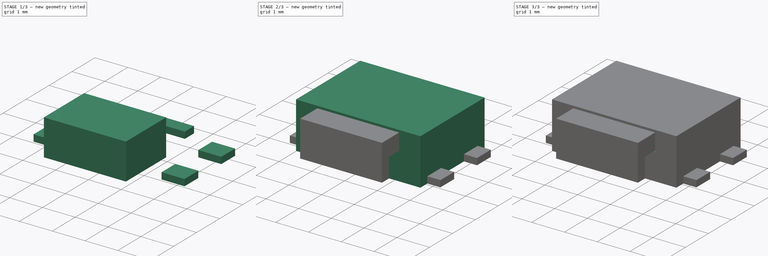
[diagram: build sequence overview — one tinted view per stage of 3, left to right]
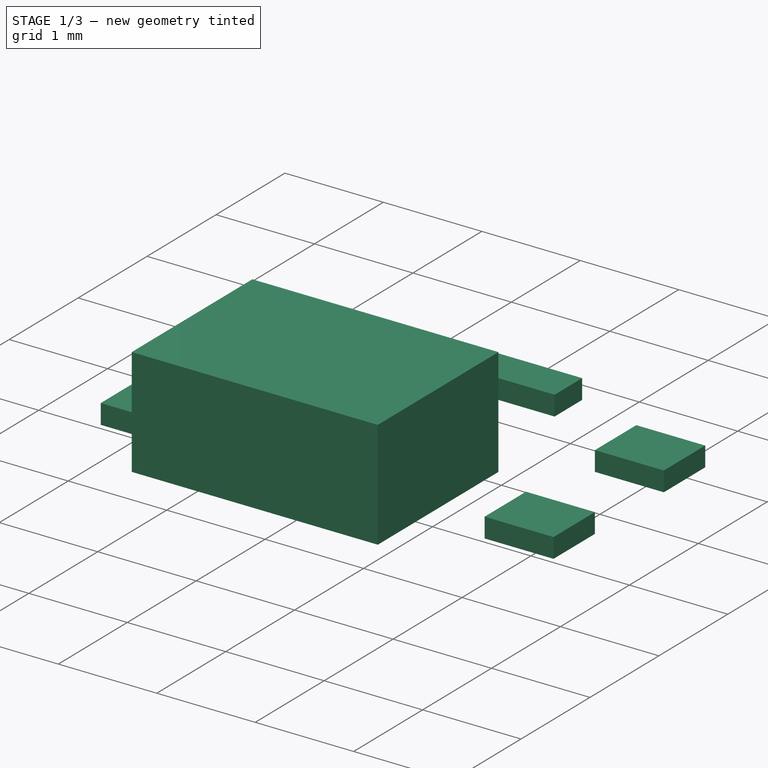
[diagram: stage 1 of 3 — iso view after this stage's code; geometry added in this stage tinted green]
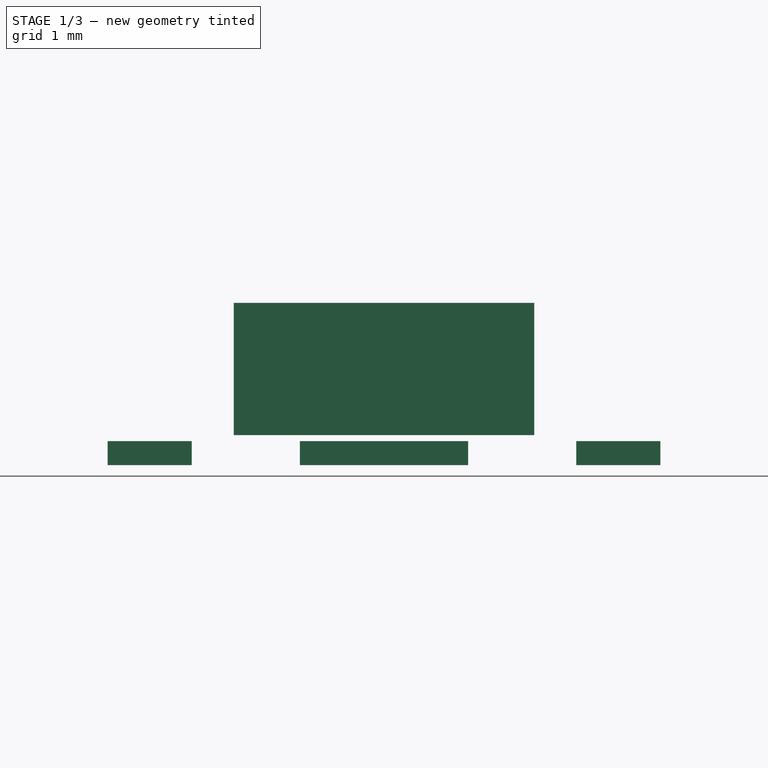
[diagram: stage 1 of 3 — front view after this stage's code; geometry added in this stage tinted green]
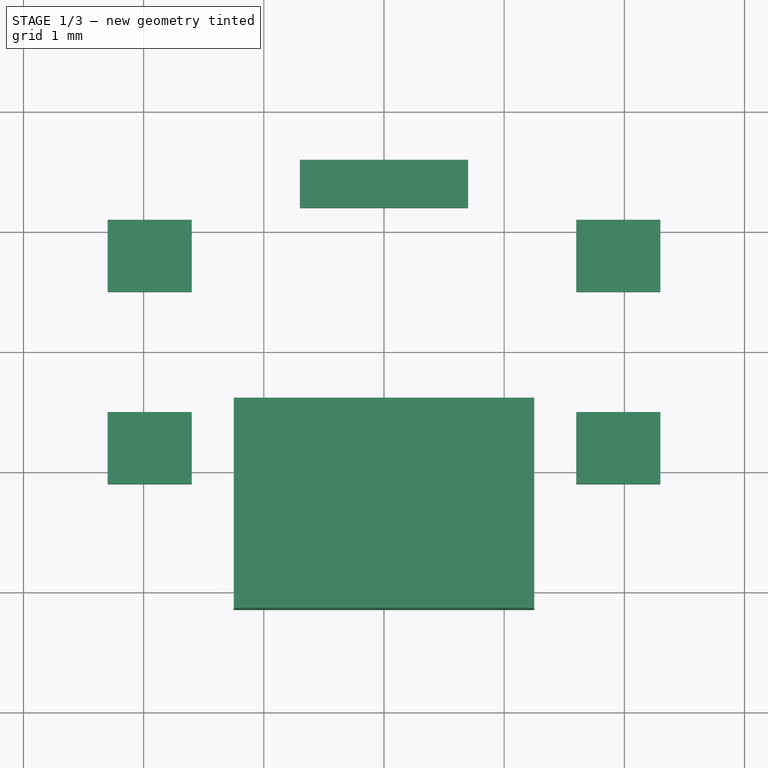
[diagram: stage 1 of 3 — top view after this stage's code; geometry added in this stage tinted green]
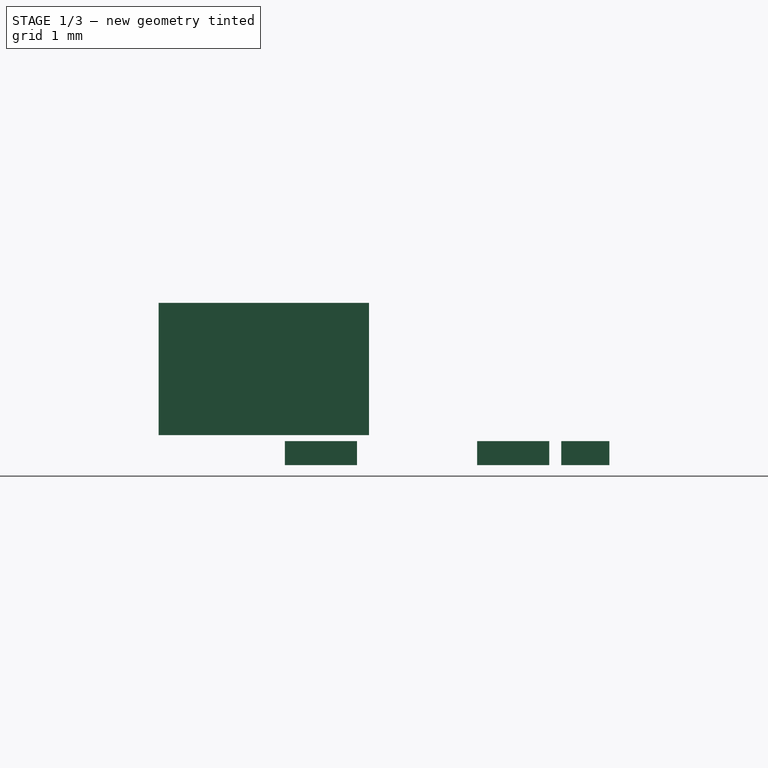
[diagram: stage 1 of 3 — right view after this stage's code; geometry added in this stage tinted green]
FCSTD DOCUMENT  (FreeCAD 0.16R6452 (Git))
Label: C-K_Components_Switch_Tactile_KMS
License: All rights reserved
LicenseURL: http://en.wikipedia.org/wiki/All_rights_reserved
objects: Sketcher::SketchObject×7, PartDesign::Pad×3, PartDesign::Pocket×2, Part::MultiFuse×1
note: 18 computed .brp shape members not serialized (recipe doc carries the construction recipe); baked Part::Feature solids carry a one-line shape summary decoded from their .brp

FEATURE [Sketcher::SketchObject] Sketch004  label="Button"
  Placement = pos=(0,-1.4,0) rot=(1,0,0;1.5708rad)
  sketch-geometry (5):
    g0: LineSegment StartX=-1.25 StartY=1.35 StartZ=0 EndX=1.25 EndY=1.35 EndZ=0
    g1: LineSegment StartX=1.25 StartY=1.35 StartZ=0 EndX=1.25 EndY=0.25 EndZ=0
    g2: LineSegment StartX=1.25 StartY=0.25 StartZ=0 EndX=-1.25 EndY=0.25 EndZ=0
    g3: LineSegment StartX=-1.25 StartY=0.25 StartZ=0 EndX=-1.25 EndY=1.35 EndZ=0
    g4: LineSegment [constr] StartX=0 StartY=0.25 StartZ=0 EndX=0 EndY=0 EndZ=0
  constraints (14):
    c: Coincident(g0,g1)
    c: Coincident(g1,g2)
    c: Coincident(g2,g3)
    c: Coincident(g3,g0)
    c: Horizontal(g0)
    c: Horizontal(g2)
    c: Vertical(g1)
    c: Vertical(g3)
    c: Vertical(g4)
    c: Coincident(g4,g-1)
    c: Symmetric(g2,g2,g4)
    c: DistanceY(g1) = -1.1
    c: DistanceY(g-1,g0) = 1.35
    c: DistanceX(g0) = 2.5
FEATURE [PartDesign::Pad] Pad001  label="Button_Pad"
  Length = 0.75
  Length2 = 1
  Placement = pos=(0,-1.4,0) rot=(1,0,0;1.5708rad)
  Sketch = -> Sketch004
  Type = 4
FEATURE [Sketcher::SketchObject] Sketch006  label="Pins"
  sketch-geometry (24):
    g0: LineSegment StartX=-2.3 StartY=-0.5 StartZ=0 EndX=-1.6 EndY=-0.5 EndZ=0
    g1: LineSegment StartX=-1.6 StartY=-0.5 StartZ=0 EndX=-1.6 EndY=-1.1 EndZ=0
    g2: LineSegment StartX=-1.6 StartY=-1.1 StartZ=0 EndX=-2.3 EndY=-1.1 EndZ=0
    g3: LineSegment StartX=-2.3 StartY=-1.1 StartZ=0 EndX=-2.3 EndY=-0.5 EndZ=0
    g4: LineSegment StartX=1.6 StartY=-0.5 StartZ=0 EndX=2.3 EndY=-0.5 EndZ=0
    g5: LineSegment StartX=2.3 StartY=-0.5 StartZ=0 EndX=2.3 EndY=-1.1 EndZ=0
    g6: LineSegment StartX=2.3 StartY=-1.1 StartZ=0 EndX=1.6 EndY=-1.1 EndZ=0
    g7: LineSegment StartX=1.6 StartY=-1.1 StartZ=0 EndX=1.6 EndY=-0.5 EndZ=0
    g8: LineSegment StartX=1.6 StartY=1.1 StartZ=0 EndX=2.3 EndY=1.1 EndZ=0
    g9: LineSegment StartX=2.3 StartY=1.1 StartZ=0 EndX=2.3 EndY=0.5 EndZ=0
    g10: LineSegment StartX=2.3 StartY=0.5 StartZ=0 EndX=1.6 EndY=0.5 EndZ=0
    g11: LineSegment StartX=1.6 StartY=0.5 StartZ=0 EndX=1.6 EndY=1.1 EndZ=0
    g12: LineSegment StartX=-2.3 StartY=1.1 StartZ=0 EndX=-1.6 EndY=1.1 EndZ=0
    g13: LineSegment StartX=-1.6 StartY=1.1 StartZ=0 EndX=-1.6 EndY=0.5 EndZ=0
    g14: LineSegment StartX=-1.6 StartY=0.5 StartZ=0 EndX=-2.3 EndY=0.5 EndZ=0
    g15: LineSegment StartX=-2.3 StartY=0.5 StartZ=0 EndX=-2.3 EndY=1.1 EndZ=0
    g16: LineSegment StartX=-0.7 StartY=1.6 StartZ=0 EndX=0.7 EndY=1.6 EndZ=0
    g17: LineSegment StartX=0.7 StartY=1.6 StartZ=0 EndX=0.7 EndY=1.2 EndZ=0
    g18: LineSegment StartX=0.7 StartY=1.2 StartZ=0 EndX=-0.7 EndY=1.2 EndZ=0
    g19: LineSegment StartX=-0.7 StartY=1.2 StartZ=0 EndX=-0.7 EndY=1.6 EndZ=0
    g20: LineSegment [constr] StartX=-1.95 StartY=0.8 StartZ=0 EndX=1.95 EndY=0.8 EndZ=0
    g21: LineSegment [constr] StartX=-1.95 StartY=-0.8 StartZ=0 EndX=1.95 EndY=-0.8 EndZ=0
    g22: LineSegment [constr] StartX=0 StartY=-0.8 StartZ=0 EndX=0 EndY=0.8 EndZ=0
    g23: LineSegment [constr] StartX=0 StartY=0.8 StartZ=0 EndX=0 EndY=1.4 EndZ=0
  constraints (72):
    c: Coincident(g0,g1)
    c: Coincident(g1,g2)
    c: Coincident(g2,g3)
    c: Coincident(g3,g0)
    c: Horizontal(g0)
    c: Horizontal(g2)
    c: Vertical(g1)
    c: Vertical(g3)
    c: Coincident(g4,g5)
    c: Coincident(g5,g6)
    c: Coincident(g6,g7)
    c: Coincident(g7,g4)
    c: Horizontal(g4)
    c: Horizontal(g6)
    c: Vertical(g5)
    c: Vertical(g7)
    c: Coincident(g8,g9)
    c: Coincident(g9,g10)
    c: Coincident(g10,g11)
    c: Coincident(g11,g8)
    c: Horizontal(g8)
    c: Horizontal(g10)
    c: Vertical(g9)
    c: Vertical(g11)
    c: Coincident(g12,g13)
    c: Coincident(g13,g14)
    c: Coincident(g14,g15)
    c: Coincident(g15,g12)
    c: Horizontal(g12)
    c: Horizontal(g14)
    c: Vertical(g13)
    c: Vertical(g15)
    c: Coincident(g16,g17)
    c: Coincident(g17,g18)
    c: Coincident(g18,g19)
    c: Coincident(g19,g16)
    c: Horizontal(g16)
    c: Horizontal(g18)
    c: Vertical(g17)
    c: Vertical(g19)
    c: Equal(g5,g1)
    c: Equal(g1,g13)
    c: Equal(g13,g9)
    c: DistanceY(g5) = -0.6
    c: Horizontal(g20)
    c: Horizontal(g21)
    c: Symmetric(g2,g0,g21)
    c: Symmetric(g6,g4,g21)
    c: Symmetric(g10,g8,g20)
    c: Symmetric(g14,g12,g20)
    c: Equal(g14,g2)
    c: Equal(g2,g6)
    c: Equal(g6,g10)
    c: Vertical(g22)
    c: Symmetric(g20,g20,g22)
    c: Symmetric(g21,g21,g22)
    c: Symmetric(g22,g22,g-1)
    c: DistanceX(g8,g12) = -4.6
    c: Equal(g20,g21)
    c: DistanceX(g12,g8) = 3.2
    c: DistanceY(g8,g5) = -2.2
    c: Vertical(g23)
    c: Symmetric(g18,g16,g23)
    c: Coincident(g23,g22)
    c: DistanceX(g16) = 1.4
    c: DistanceY(g19) = 0.4
    c: DistanceY(g4,g9) = 1
    c: DistanceY(g2,g18) = 2.3
    c: DistanceX(g21) = -1.95
    c: DistanceY(g21) = -0.8
    c: DistanceX(g6) = -0.7
    c: DistanceY(g-1,g23) = 1.4
FEATURE [PartDesign::Pad] Pad002  label="Pins_Pad"
  Length = 0.2
  Length2 = 100
  Sketch = -> Sketch006
  Type = 0
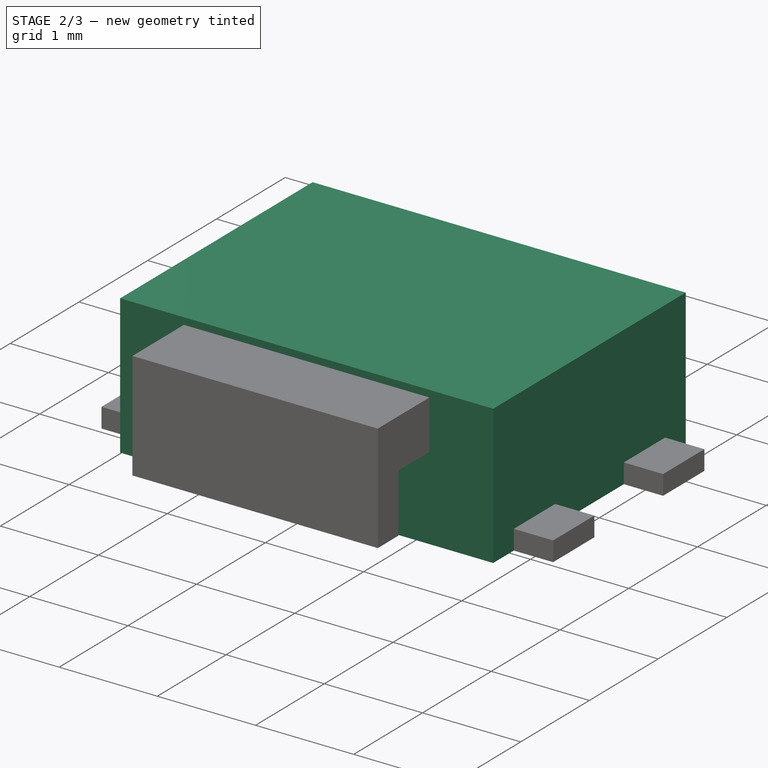
[diagram: stage 2 of 3 — iso view after this stage's code; geometry added in this stage tinted green]
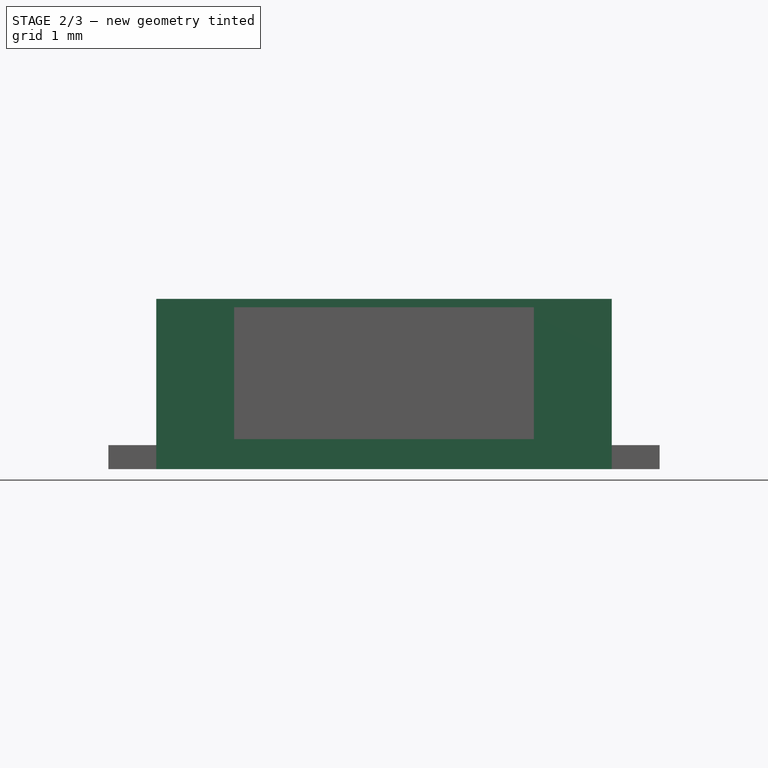
[diagram: stage 2 of 3 — front view after this stage's code; geometry added in this stage tinted green]
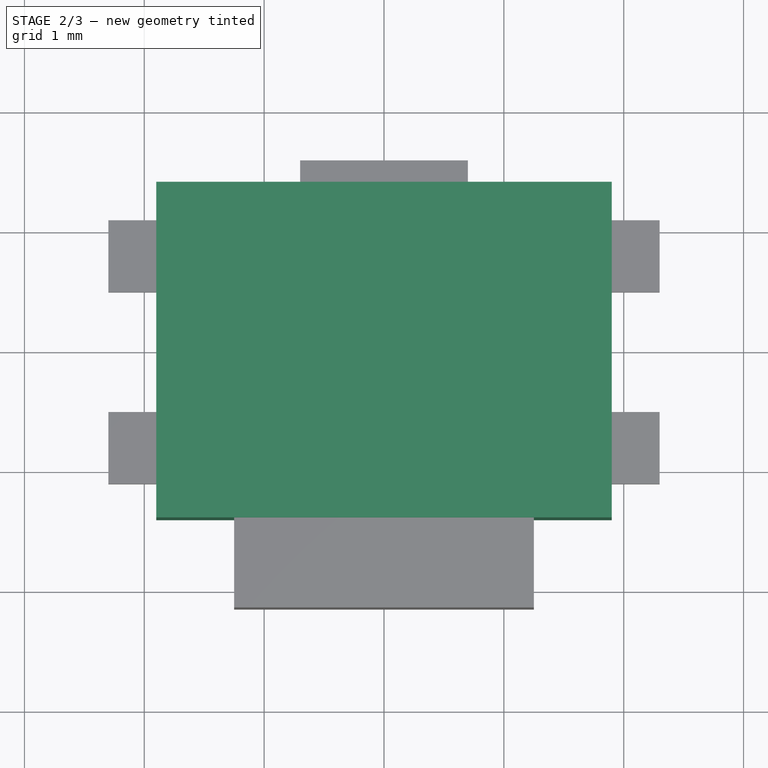
[diagram: stage 2 of 3 — top view after this stage's code; geometry added in this stage tinted green]
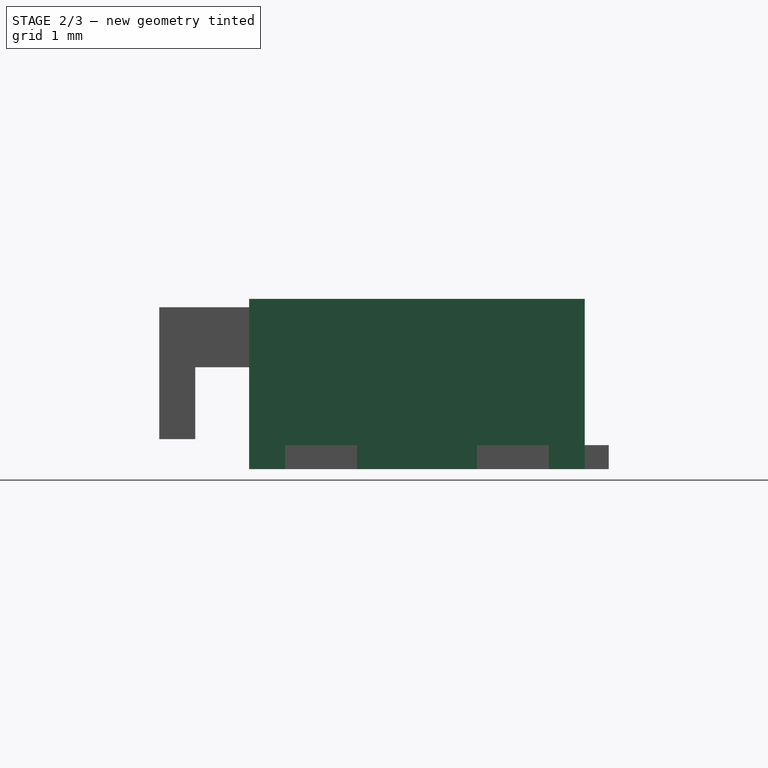
[diagram: stage 2 of 3 — right view after this stage's code; geometry added in this stage tinted green]
FEATURE [Sketcher::SketchObject] Sketch  label="LandPattern_Helper"
  sketch-geometry (24):
    g0: LineSegment StartX=-2.5 StartY=-0.3 StartZ=0 EndX=-1.6 EndY=-0.3 EndZ=0
    g1: LineSegment StartX=-1.6 StartY=-0.3 StartZ=0 EndX=-1.6 EndY=-1.3 EndZ=0
    g2: LineSegment StartX=-1.6 StartY=-1.3 StartZ=0 EndX=-2.5 EndY=-1.3 EndZ=0
    g3: LineSegment StartX=-2.5 StartY=-1.3 StartZ=0 EndX=-2.5 EndY=-0.3 EndZ=0
    g4: LineSegment StartX=1.6 StartY=-0.3 StartZ=0 EndX=2.5 EndY=-0.3 EndZ=0
    g5: LineSegment StartX=2.5 StartY=-0.3 StartZ=0 EndX=2.5 EndY=-1.3 EndZ=0
    g6: LineSegment StartX=2.5 StartY=-1.3 StartZ=0 EndX=1.6 EndY=-1.3 EndZ=0
    g7: LineSegment StartX=1.6 StartY=-1.3 StartZ=0 EndX=1.6 EndY=-0.3 EndZ=0
    g8: LineSegment StartX=1.6 StartY=1.3 StartZ=0 EndX=2.5 EndY=1.3 EndZ=0
    g9: LineSegment StartX=2.5 StartY=1.3 StartZ=0 EndX=2.5 EndY=0.3 EndZ=0
    g10: LineSegment StartX=2.5 StartY=0.3 StartZ=0 EndX=1.6 EndY=0.3 EndZ=0
    g11: LineSegment StartX=1.6 StartY=0.3 StartZ=0 EndX=1.6 EndY=1.3 EndZ=0
    g12: LineSegment StartX=-2.5 StartY=1.3 StartZ=0 EndX=-1.6 EndY=1.3 EndZ=0
    g13: LineSegment StartX=-1.6 StartY=1.3 StartZ=0 EndX=-1.6 EndY=0.3 EndZ=0
    g14: LineSegment StartX=-1.6 StartY=0.3 StartZ=0 EndX=-2.5 EndY=0.3 EndZ=0
    g15: LineSegment StartX=-2.5 StartY=0.3 StartZ=0 EndX=-2.5 EndY=1.3 EndZ=0
    g16: LineSegment StartX=-0.85 StartY=1.79 StartZ=0 EndX=0.85 EndY=1.79 EndZ=0
    g17: LineSegment StartX=0.85 StartY=1.79 StartZ=0 EndX=0.85 EndY=1.24 EndZ=0
    g18: LineSegment StartX=0.85 StartY=1.24 StartZ=0 EndX=-0.85 EndY=1.24 EndZ=0
    g19: LineSegment StartX=-0.85 StartY=1.24 StartZ=0 EndX=-0.85 EndY=1.79 EndZ=0
    g20: LineSegment [constr] StartX=-2.05 StartY=0.8 StartZ=0 EndX=2.05 EndY=0.8 EndZ=0
    g21: LineSegment [constr] StartX=-2.05 StartY=-0.8 StartZ=0 EndX=2.05 EndY=-0.8 EndZ=0
    g22: LineSegment [constr] StartX=0 StartY=-0.8 StartZ=0 EndX=0 EndY=0.8 EndZ=0
    g23: LineSegment [constr] StartX=0 StartY=0.8 StartZ=0 EndX=0 EndY=1.515 EndZ=0
  constraints (72):
    c: Coincident(g0,g1)
    c: Coincident(g1,g2)
    c: Coincident(g2,g3)
    c: Coincident(g3,g0)
    c: Horizontal(g0)
    c: Horizontal(g2)
    c: Vertical(g1)
    c: Vertical(g3)
    c: Coincident(g4,g5)
    c: Coincident(g5,g6)
    c: Coincident(g6,g7)
    c: Coincident(g7,g4)
    c: Horizontal(g4)
    c: Horizontal(g6)
    c: Vertical(g5)
    c: Vertical(g7)
    c: Coincident(g8,g9)
    c: Coincident(g9,g10)
    c: Coincident(g10,g11)
    c: Coincident(g11,g8)
    c: Horizontal(g8)
    c: Horizontal(g10)
    c: Vertical(g9)
    c: Vertical(g11)
    c: Coincident(g12,g13)
    c: Coincident(g13,g14)
    c: Coincident(g14,g15)
    c: Coincident(g15,g12)
    c: Horizontal(g12)
    c: Horizontal(g14)
    c: Vertical(g13)
    c: Vertical(g15)
    c: Coincident(g16,g17)
    c: Coincident(g17,g18)
    c: Coincident(g18,g19)
    c: Coincident(g19,g16)
    c: Horizontal(g16)
    c: Horizontal(g18)
    c: Vertical(g17)
    c: Vertical(g19)
    c: Equal(g5,g1)
    c: Equal(g1,g13)
    c: Equal(g13,g9)
    c: DistanceY(g5) = -1
    c: Horizontal(g20)
    c: Horizontal(g21)
    c: Symmetric(g2,g0,g21)
    c: Symmetric(g6,g4,g21)
    c: Symmetric(g10,g8,g20)
    c: Symmetric(g14,g12,g20)
    c: Equal(g14,g2)
    c: Equal(g2,g6)
    c: Equal(g6,g10)
    c: Vertical(g22)
    c: Symmetric(g20,g20,g22)
    c: Symmetric(g21,g21,g22)
    c: Symmetric(g22,g22,g-1)
    c: DistanceX(g8,g12) = -5
    c: Equal(g20,g21)
    c: DistanceX(g12,g8) = 3.2
    c: DistanceY(g8,g5) = -2.6
    c: Vertical(g23)
    c: Symmetric(g18,g16,g23)
    c: Coincident(g23,g22)
    c: DistanceX(g16) = 1.7
    c: DistanceY(g19) = 0.55
    c: DistanceY(g4,g9) = 0.6
    c: DistanceY(g2,g18) = 2.54
    c: DistanceX(g21) = -2.05
    c: DistanceY(g21) = -0.8
    c: DistanceX(g6) = -0.9
    c: DistanceY(g-1,g23) = 1.515
FEATURE [Sketcher::SketchObject] Sketch001  label="Silcsreen_Helper"
  sketch-geometry (8):
    g0: LineSegment StartX=-2.1 StartY=1.4 StartZ=0 EndX=2.1 EndY=1.4 EndZ=0
    g1: LineSegment StartX=2.1 StartY=1.4 StartZ=0 EndX=2.1 EndY=-1.4 EndZ=0
    g2: LineSegment StartX=2.1 StartY=-1.4 StartZ=0 EndX=-2.1 EndY=-1.4 EndZ=0
    g3: LineSegment StartX=-2.1 StartY=-1.4 StartZ=0 EndX=-2.1 EndY=1.4 EndZ=0
    g4: LineSegment StartX=-1.25 StartY=-1.4 StartZ=0 EndX=-1.25 EndY=-2.15 EndZ=0
    g5: LineSegment StartX=-1.25 StartY=-2.15 StartZ=0 EndX=1.25 EndY=-2.15 EndZ=0
    g6: LineSegment StartX=1.25 StartY=-2.15 StartZ=0 EndX=1.25 EndY=-1.4 EndZ=0
    g7: LineSegment [constr] StartX=0 StartY=0 StartZ=0 EndX=0 EndY=-2.15 EndZ=0
  constraints (27):
    c: Coincident(g0,g1)
    c: Coincident(g1,g2)
    c: Coincident(g2,g3)
    c: Coincident(g3,g0)
    c: Horizontal(g0)
    c: Horizontal(g2)
    c: Vertical(g1)
    c: Vertical(g3)
    c: DistanceY(g1) = -2.8
    c: DistanceX(g2) = -4.2
    c: Symmetric(g2,g0,g-1)
    c: Vertical(g4)
    c: Coincident(g4,g5)
    c: Horizontal(g5)
    c: Coincident(g5,g6)
    c: Vertical(g6)
    c: PointOnObject(g6,g2)
    c: PointOnObject(g4,g2)
    c: DistanceX(g5) = 2.5
    c: Vertical(g7)
    c: Symmetric(g5,g5,g7)
    c: Coincident(g7,g-1)
    c: DistanceY(g4,g0) = 3.55
    c: DistanceY(g-1,g4) = -2.15
    c: DistanceX(g-1,g4) = -1.25
    c: DistanceX(g0) = -2.1
    c: DistanceY(g0) = 1.4
FEATURE [Sketcher::SketchObject] Sketch002  label="Base"
  sketch-geometry (4):
    g0: LineSegment StartX=-1.9 StartY=1.4 StartZ=0 EndX=1.9 EndY=1.4 EndZ=0
    g1: LineSegment StartX=1.9 StartY=1.4 StartZ=0 EndX=1.9 EndY=-1.4 EndZ=0
    g2: LineSegment StartX=1.9 StartY=-1.4 StartZ=0 EndX=-1.9 EndY=-1.4 EndZ=0
    g3: LineSegment StartX=-1.9 StartY=-1.4 StartZ=0 EndX=-1.9 EndY=1.4 EndZ=0
  constraints (11):
    c: Coincident(g0,g1)
    c: Coincident(g1,g2)
    c: Coincident(g2,g3)
    c: Coincident(g3,g0)
    c: Horizontal(g0)
    c: Horizontal(g2)
    c: Vertical(g1)
    c: Vertical(g3)
    c: Symmetric(g2,g0,g-1)
    c: DistanceY(g1) = -2.8
    c: DistanceX(g0) = 3.8
FEATURE [PartDesign::Pad] Pad  label="BasePad"
  Length = 1.42
  Length2 = 100
  Sketch = -> Sketch002
  Type = 0
FEATURE [Sketcher::SketchObject] Sketch005  label="ButtonProfile"
  ExternalGeometry = -> [Pad001]
  Placement = pos=(1.25,-1.4,0) rot=(0.707107,0,0.707107;3.14159rad)
  Support = -> Pad001 [Face2]
  sketch-geometry (4):
    g0: LineSegment StartX=0.15 StartY=0.45 StartZ=0 EndX=0.85 EndY=0.45 EndZ=0
    g1: LineSegment StartX=0.85 StartY=0.45 StartZ=0 EndX=0.85 EndY=-1.15 EndZ=0
    g2: LineSegment StartX=0.85 StartY=-1.15 StartZ=0 EndX=0.15 EndY=-1.15 EndZ=0
    g3: LineSegment StartX=0.15 StartY=-1.15 StartZ=0 EndX=0.15 EndY=0.45 EndZ=0
  constraints (12):
    c: Coincident(g0,g1)
    c: Coincident(g1,g2)
    c: Coincident(g2,g3)
    c: Coincident(g3,g0)
    c: Horizontal(g0)
    c: Horizontal(g2)
    c: Vertical(g1)
    c: Vertical(g3)
    c: DistanceY(g0,g-3) = 0.3
    c: DistanceY(g1) = -1.6
    c: DistanceX(g0,g-3) = 0.5
    c: DistanceX(g2) = -0.7
FEATURE [PartDesign::Pocket] Pocket001  label="ButtonProfile_Pocket"
  Length = 5
  Placement = pos=(0,-1.4,0) rot=(1,0,0;1.5708rad)
  Sketch = -> Sketch005
  Type = 1
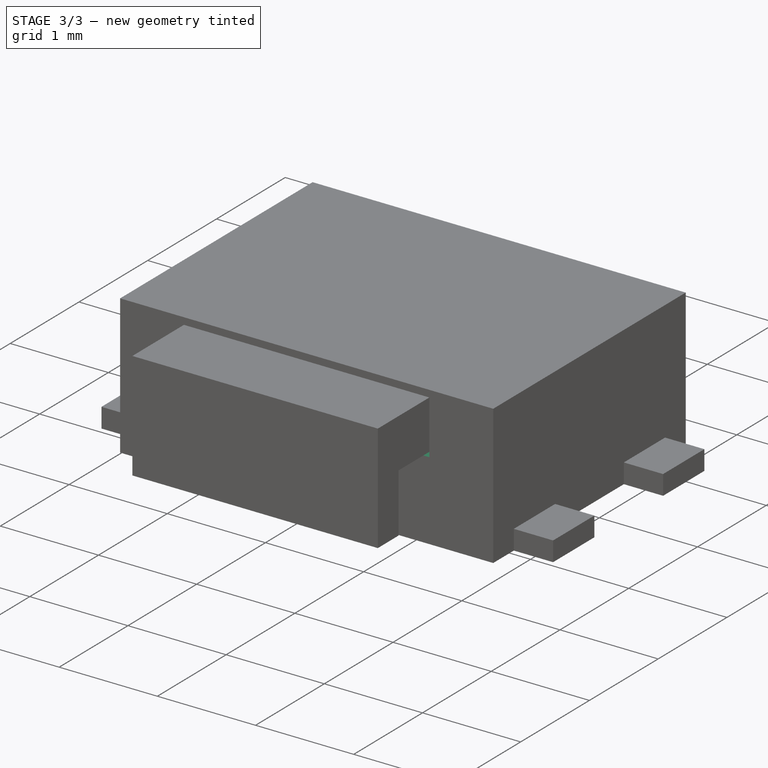
[diagram: stage 3 of 3 — iso view after this stage's code; geometry added in this stage tinted green]
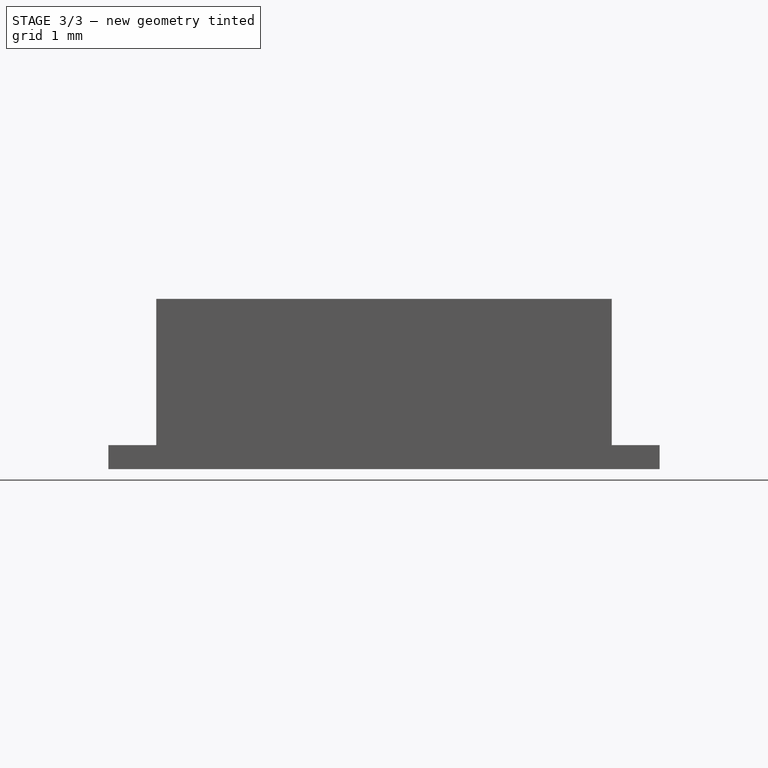
[diagram: stage 3 of 3 — front view after this stage's code; geometry added in this stage tinted green]
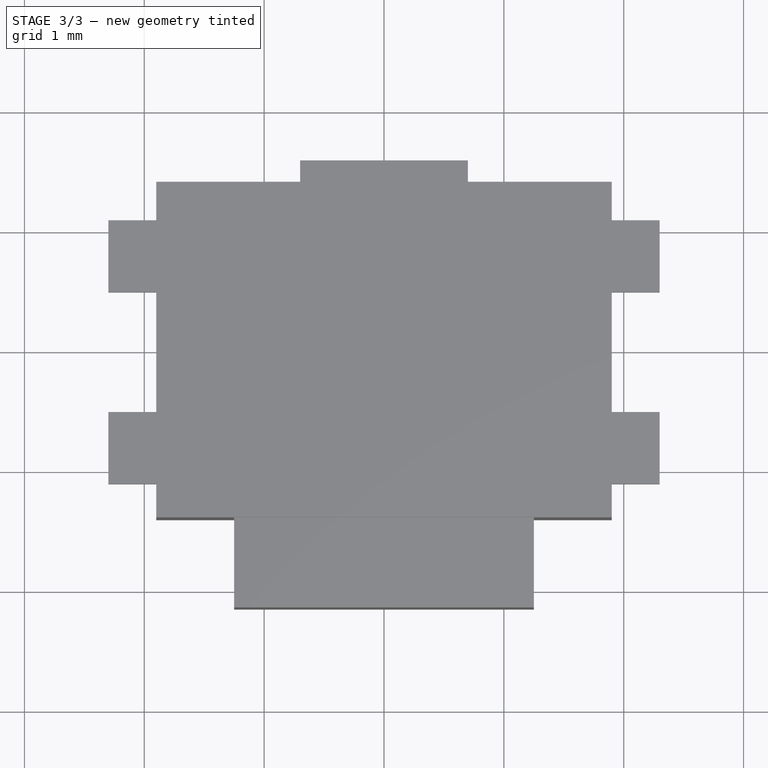
[diagram: stage 3 of 3 — top view after this stage's code; geometry added in this stage tinted green]
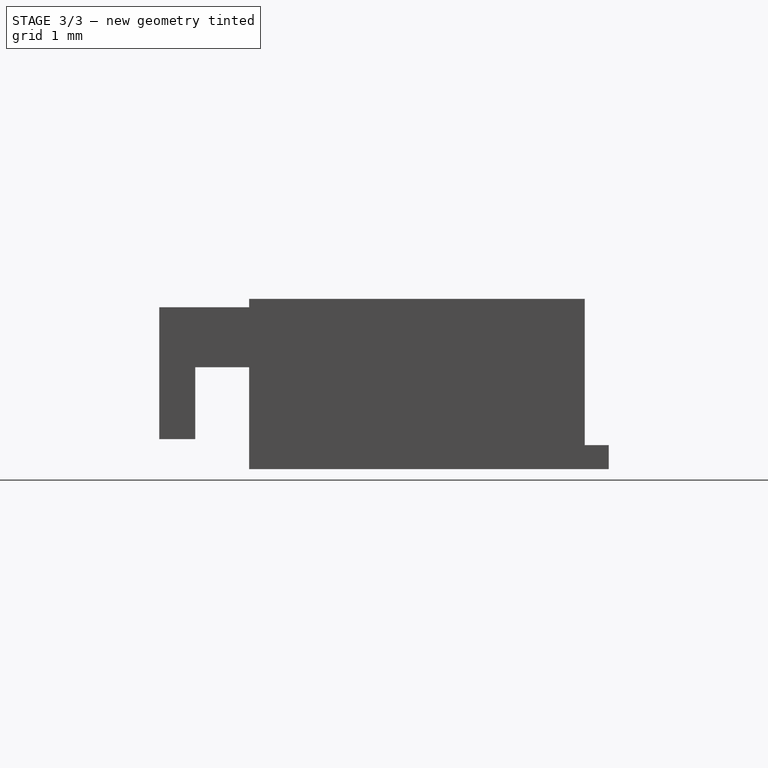
[diagram: stage 3 of 3 — right view after this stage's code; geometry added in this stage tinted green]
FEATURE [Sketcher::SketchObject] Sketch003  label="ButtonCut"
  Placement = pos=(0,-1.4,0) rot=(1,0,0;1.5708rad)
  Support = -> Pad [Face3]
  expr: Constraints[11] = -(1.1mm) / 2
  sketch-geometry (5):
    g0: LineSegment StartX=-1.25 StartY=1.35 StartZ=0 EndX=1.25 EndY=1.35 EndZ=0
    g1: LineSegment StartX=1.25 StartY=1.35 StartZ=0 EndX=1.25 EndY=0.8 EndZ=0
    g2: LineSegment StartX=1.25 StartY=0.8 StartZ=0 EndX=-1.25 EndY=0.8 EndZ=0
    g3: LineSegment StartX=-1.25 StartY=0.8 StartZ=0 EndX=-1.25 EndY=1.35 EndZ=0
    g4: LineSegment [constr] StartX=0 StartY=0.8 StartZ=0 EndX=0 EndY=0 EndZ=0
  constraints (14):
    c: Coincident(g0,g1)
    c: Coincident(g1,g2)
    c: Coincident(g2,g3)
    c: Coincident(g3,g0)
    c: Horizontal(g0)
    c: Horizontal(g2)
    c: Vertical(g1)
    c: Vertical(g3)
    c: Vertical(g4)
    c: Coincident(g4,g-1)
    c: Symmetric(g2,g2,g4)
    c: DistanceY(g1) = -0.55
    c: DistanceY(g-1,g0) = 1.35
    c: DistanceX(g0) = 2.5
FEATURE [PartDesign::Pocket] Pocket  label="ButtonCut_Pocket"
  Length = 2
  Sketch = -> Sketch003
  Type = 0
FEATURE [Part::MultiFuse] Fusion
  Shapes = -> [Pocket,Pocket001,Pad002]
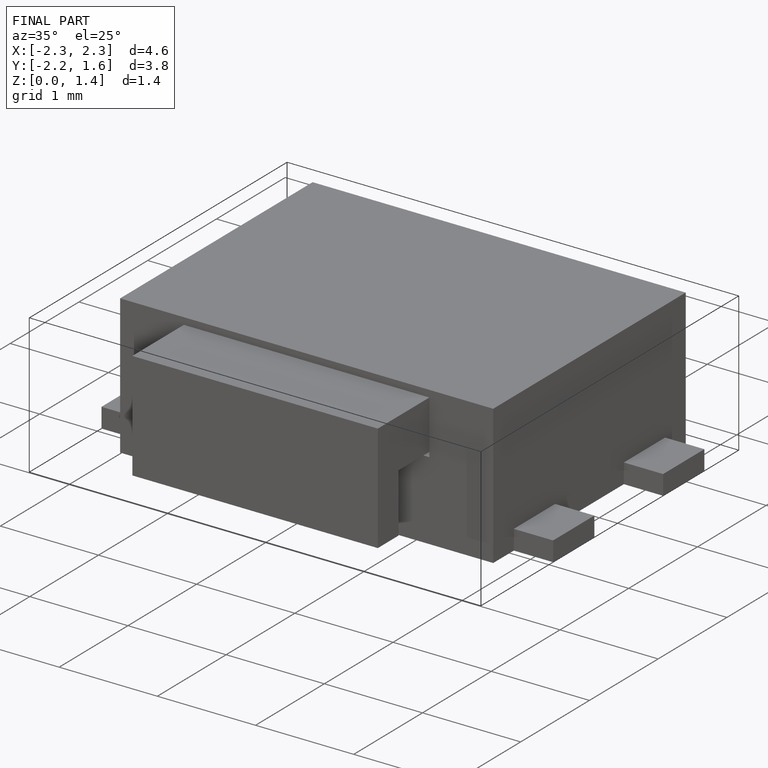
[diagram: finished part — iso view with bounding-box wireframe]
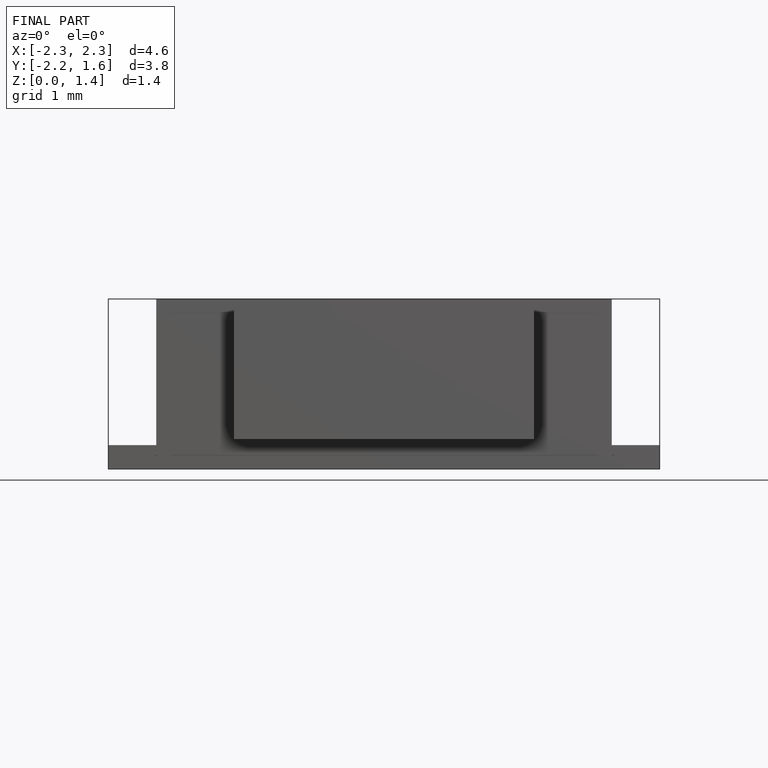
[diagram: finished part — front view with bounding-box wireframe]
